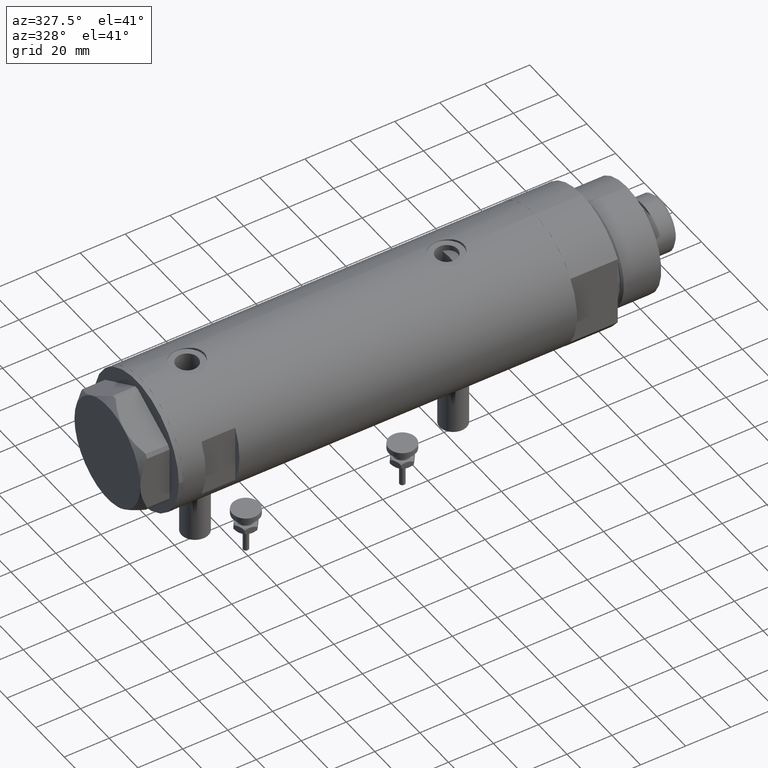
[diagram: clean part render]
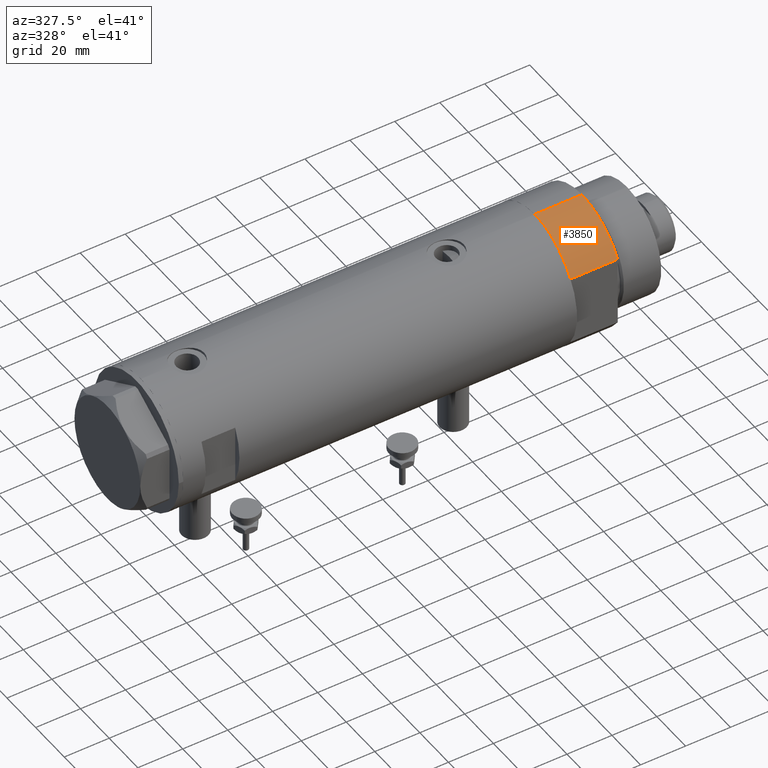
[diagram: same view with one face highlighted and labeled with its STEP entity id]
A machine part, auxiliary view. The second image highlights one B-rep face of the part: STEP entity #3850.
In plain terms, the highlighted cylindrical surface (partial cylindrical patch) has radius 29.5 mm, axis along (-1, -0, 0).
Its self-contained STEP definition (entity closure, byte-faithful):
#417 = VECTOR ( 'NONE', #3777, 1000.000000000000000 ) ;
#508 = ORIENTED_EDGE ( 'NONE', *, *, #3759, .T. ) ;
#573 = VERTEX_POINT ( 'NONE', #3435 ) ;
#749 = DIRECTION ( 'NONE',  ( 0.000000000000000000, 0.000000000000000000, 1.000000000000000000 ) ) ;
#780 = CARTESIAN_POINT ( 'NONE',  ( -15.66045976336582690, -25.00000000000000000, 0.000000000000000000 ) ) ;
#947 = CYLINDRICAL_SURFACE ( 'NONE', #3865, 29.50000000000000355 ) ;
#1181 = LINE ( 'NONE', #1966, #417 ) ;
#1196 = DIRECTION ( 'NONE',  ( 0.000000000000000000, 0.000000000000000000, 1.000000000000000000 ) ) ;
#1222 = CARTESIAN_POINT ( 'NONE',  ( 0.000000000000000000, 0.000000000000000000, 21.00000000000000000 ) ) ;
#1455 = DIRECTION ( 'NONE',  ( 1.000000000000000000, 0.000000000000000000, 0.000000000000000000 ) ) ;
#1803 = CARTESIAN_POINT ( 'NONE',  ( -29.50000000000000355, 0.000000000000000000, 21.00000000000000000 ) ) ;
#1814 = FACE_OUTER_BOUND ( 'NONE', #4075, .T. ) ;
#1849 = DIRECTION ( 'NONE',  ( -1.000000000000000000, 0.000000000000000000, 0.000000000000000000 ) ) ;
#1966 = CARTESIAN_POINT ( 'NONE',  ( -15.66045976336583401, -25.00000000000000000, 0.000000000000000000 ) ) ;
#1982 = AXIS2_PLACEMENT_3D ( 'NONE', #3870, #1196, #5709 ) ;
#2354 = VERTEX_POINT ( 'NONE', #3199 ) ;
#2622 = VECTOR ( 'NONE', #3623, 1000.000000000000000 ) ;
#2858 = DIRECTION ( 'NONE',  ( -0.000000000000000000, -0.000000000000000000, -1.000000000000000000 ) ) ;
#3198 = CIRCLE ( 'NONE', #3675, 29.50000000000000355 ) ;
#3199 = CARTESIAN_POINT ( 'NONE',  ( -29.50000000000000355, 0.000000000000000000, 0.000000000000000000 ) ) ;
#3207 = EDGE_CURVE ( 'NONE', #573, #5275, #3198, .T. ) ;
#3266 = VERTEX_POINT ( 'NONE', #780 ) ;
#3435 = CARTESIAN_POINT ( 'NONE',  ( -29.50000000000000355, 0.000000000000000000, 21.00000000000000000 ) ) ;
#3623 = DIRECTION ( 'NONE',  ( -0.000000000000000000, -0.000000000000000000, -1.000000000000000000 ) ) ;
#3675 = AXIS2_PLACEMENT_3D ( 'NONE', #1222, #749, #1455 ) ;
#3759 = EDGE_CURVE ( 'NONE', #573, #2354, #5900, .T. ) ;
#3777 = DIRECTION ( 'NONE',  ( -0.000000000000000000, -0.000000000000000000, 1.000000000000000000 ) ) ;
#3850 = ADVANCED_FACE ( 'NONE', ( #1814 ), #947, .T. ) ;
#3865 = AXIS2_PLACEMENT_3D ( 'NONE', #5099, #2858, #1849 ) ;
#3870 = CARTESIAN_POINT ( 'NONE',  ( 0.000000000000000000, 0.000000000000000000, 0.000000000000000000 ) ) ;
#4075 = EDGE_LOOP ( 'NONE', ( #5150, #508, #5240, #5306 ) ) ;
#4502 = EDGE_CURVE ( 'NONE', #3266, #5275, #1181, .T. ) ;
#4536 = CIRCLE ( 'NONE', #1982, 29.50000000000000355 ) ;
#4663 = CARTESIAN_POINT ( 'NONE',  ( -15.66045976336583045, -24.99999999999999645, 20.99999999999999645 ) ) ;
#4850 = EDGE_CURVE ( 'NONE', #2354, #3266, #4536, .T. ) ;
#5099 = CARTESIAN_POINT ( 'NONE',  ( 0.000000000000000000, 0.000000000000000000, 21.00000000000000000 ) ) ;
#5150 = ORIENTED_EDGE ( 'NONE', *, *, #3207, .F. ) ;
#5240 = ORIENTED_EDGE ( 'NONE', *, *, #4850, .T. ) ;
#5275 = VERTEX_POINT ( 'NONE', #4663 ) ;
#5306 = ORIENTED_EDGE ( 'NONE', *, *, #4502, .T. ) ;
#5709 = DIRECTION ( 'NONE',  ( 1.000000000000000000, 0.000000000000000000, 0.000000000000000000 ) ) ;
#5900 = LINE ( 'NONE', #1803, #2622 ) ;